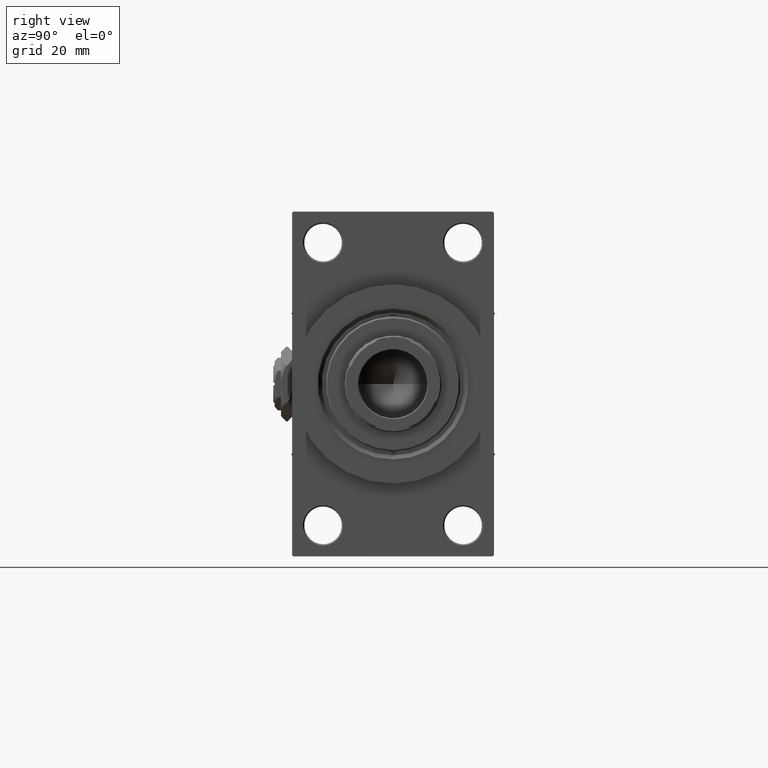
[diagram: clean part render]
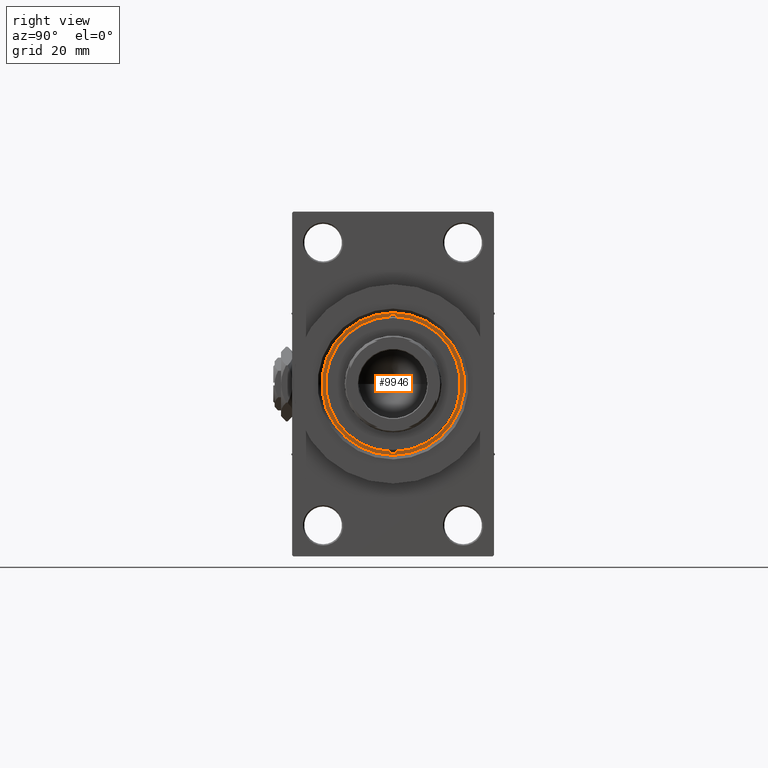
[diagram: same view with one face highlighted and labeled with its STEP entity id]
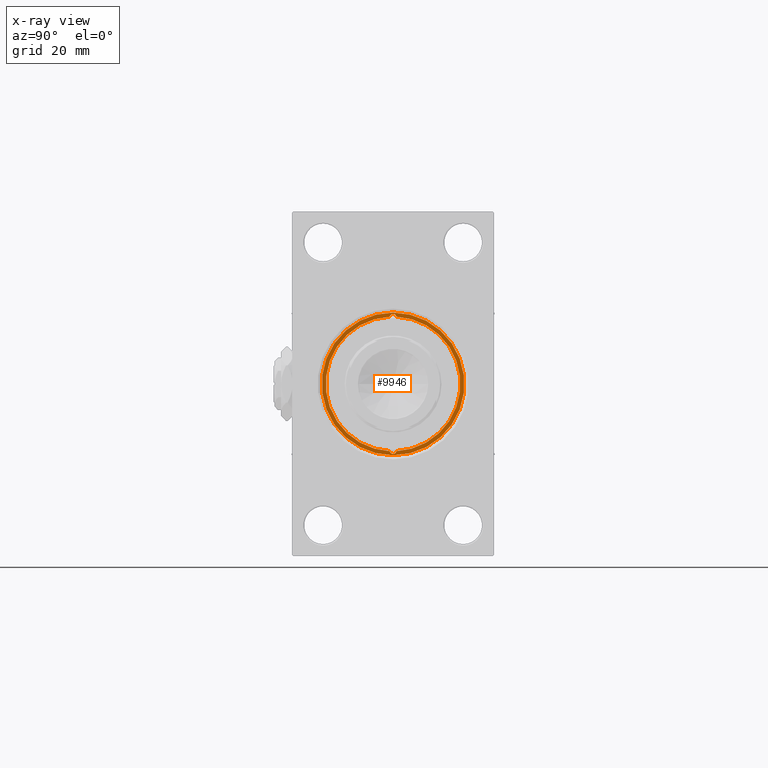
[diagram: x-ray of the same camera — body ghosted, the highlighted face saturated]
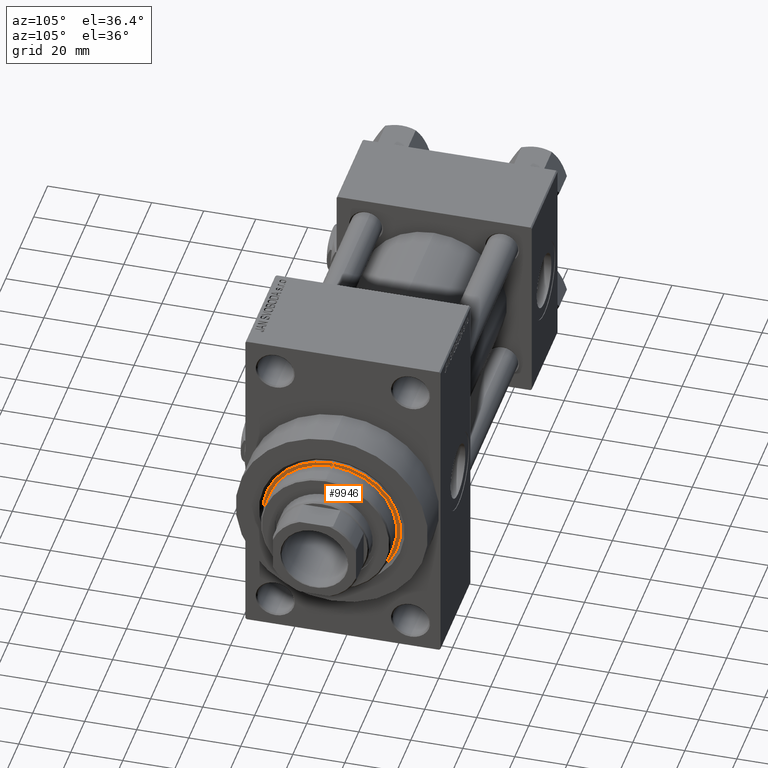
[diagram: same view with one face highlighted and labeled with its STEP entity id]
A machine part, right view. The second image highlights one B-rep face of the part: STEP entity #9946.
The next image is the same camera in x-ray: the body ghosted, the highlighted face saturated — about 0% of this face is hidden behind the body in this view.
A second angle (auxiliary view) of the same face is appended — the face is thin or edge-on in the first view.
In plain terms, the highlighted planar face has unit normal (1, -0, -0).
Its self-contained STEP definition (entity closure, byte-faithful):
#1424 = ORIENTED_EDGE ( 'NONE', *, *, #7255, .F. ) ;
#1521 = CARTESIAN_POINT ( 'NONE',  ( -24.96969696969697239, 1.230541848742237043, 43.25999999999999801 ) ) ;
#2685 = VERTEX_POINT ( 'NONE', #28113 ) ;
#4352 = AXIS2_PLACEMENT_3D ( 'NONE', #36135, #39667, #5321 ) ;
#5321 = DIRECTION ( 'NONE',  ( 1.000000000000000000, 0.000000000000000000, 0.000000000000000000 ) ) ;
#5324 = AXIS2_PLACEMENT_3D ( 'NONE', #34362, #41883, #26840 ) ;
#5377 = CARTESIAN_POINT ( 'NONE',  ( 24.96969696969697239, -1.230541848742237043, 43.25999999999999801 ) ) ;
#6514 = EDGE_CURVE ( 'NONE', #49205, #17184, #37346, .T. ) ;
#7255 = EDGE_CURVE ( 'NONE', #23646, #44979, #42190, .T. ) ;
#7369 = VERTEX_POINT ( 'NONE', #14946 ) ;
#7493 = AXIS2_PLACEMENT_3D ( 'NONE', #14260, #25053, #48113 ) ;
#8199 = ORIENTED_EDGE ( 'NONE', *, *, #44146, .T. ) ;
#9622 = DIRECTION ( 'NONE',  ( 0.000000000000000000, 0.000000000000000000, 1.000000000000000000 ) ) ;
#9946 = ADVANCED_FACE ( 'NONE', ( #38343, #18521 ), #30332, .T. ) ;
#9947 = CARTESIAN_POINT ( 'NONE',  ( -24.75000000000000000, 0.000000000000000000, 43.25999999999999801 ) ) ;
#9954 = CIRCLE ( 'NONE', #4352, 25.00000000000000000 ) ;
#10413 = DIRECTION ( 'NONE',  ( 0.000000000000000000, 0.000000000000000000, 1.000000000000000000 ) ) ;
#10828 = AXIS2_PLACEMENT_3D ( 'NONE', #45308, #11201, #22728 ) ;
#11201 = DIRECTION ( 'NONE',  ( -0.000000000000000000, -0.000000000000000000, 1.000000000000000000 ) ) ;
#12286 = CIRCLE ( 'NONE', #20291, 26.50000000000000355 ) ;
#14260 = CARTESIAN_POINT ( 'NONE',  ( -24.75000000000000000, 0.000000000000000000, 43.25999999999999801 ) ) ;
#14776 = DIRECTION ( 'NONE',  ( 1.000000000000000000, 0.000000000000000000, -0.000000000000000000 ) ) ;
#14920 = CARTESIAN_POINT ( 'NONE',  ( -26.00000000000000000, 1.530808498934188612E-16, 43.25999999999999801 ) ) ;
#14946 = CARTESIAN_POINT ( 'NONE',  ( -26.50000000000000355, 0.000000000000000000, 43.25999999999999801 ) ) ;
#17184 = VERTEX_POINT ( 'NONE', #26933 ) ;
#17696 = DIRECTION ( 'NONE',  ( -0.000000000000000000, -0.000000000000000000, 1.000000000000000000 ) ) ;
#18417 = CARTESIAN_POINT ( 'NONE',  ( 0.000000000000000000, 0.000000000000000000, 43.25999999999999801 ) ) ;
#18521 = FACE_OUTER_BOUND ( 'NONE', #48660, .T. ) ;
#19087 = ORIENTED_EDGE ( 'NONE', *, *, #39470, .T. ) ;
#19317 = CARTESIAN_POINT ( 'NONE',  ( 24.96969696969697239, 1.230541848742237043, 43.25999999999999801 ) ) ;
#20057 = ORIENTED_EDGE ( 'NONE', *, *, #48087, .F. ) ;
#20291 = AXIS2_PLACEMENT_3D ( 'NONE', #18417, #10413, #25705 ) ;
#22728 = DIRECTION ( 'NONE',  ( 1.000000000000000000, 0.000000000000000000, 0.000000000000000000 ) ) ;
#23646 = VERTEX_POINT ( 'NONE', #1521 ) ;
#24927 = EDGE_LOOP ( 'NONE', ( #1424, #39766, #20057, #36523, #48056, #42573 ) ) ;
#25053 = DIRECTION ( 'NONE',  ( -0.000000000000000000, -0.000000000000000000, 1.000000000000000000 ) ) ;
#25705 = DIRECTION ( 'NONE',  ( 1.000000000000000000, 0.000000000000000000, 0.000000000000000000 ) ) ;
#25903 = CIRCLE ( 'NONE', #7493, 1.249999999999997558 ) ;
#26840 = DIRECTION ( 'NONE',  ( 1.000000000000000000, 0.000000000000000000, 0.000000000000000000 ) ) ;
#26933 = CARTESIAN_POINT ( 'NONE',  ( 26.00000000000000000, 0.000000000000000000, 43.25999999999999801 ) ) ;
#28113 = CARTESIAN_POINT ( 'NONE',  ( -24.96969696969697239, -1.230541848742237043, 43.25999999999999801 ) ) ;
#28205 = VERTEX_POINT ( 'NONE', #31978 ) ;
#28351 = CIRCLE ( 'NONE', #37946, 25.00000000000000000 ) ;
#28448 = DIRECTION ( 'NONE',  ( 1.000000000000000000, 0.000000000000000000, 0.000000000000000000 ) ) ;
#28802 = EDGE_CURVE ( 'NONE', #44979, #2685, #25903, .T. ) ;
#29394 = AXIS2_PLACEMENT_3D ( 'NONE', #9947, #17696, #32045 ) ;
#29888 = EDGE_CURVE ( 'NONE', #2685, #49205, #28351, .T. ) ;
#30332 = PLANE ( 'NONE',  #39071 ) ;
#31978 = CARTESIAN_POINT ( 'NONE',  ( 26.50000000000000355, 3.245314017740486554E-15, 43.25999999999999801 ) ) ;
#32045 = DIRECTION ( 'NONE',  ( 1.000000000000000000, 0.000000000000000000, 0.000000000000000000 ) ) ;
#32449 = CIRCLE ( 'NONE', #10828, 1.249999999999997558 ) ;
#33092 = AXIS2_PLACEMENT_3D ( 'NONE', #43981, #9622, #28448 ) ;
#33843 = CARTESIAN_POINT ( 'NONE',  ( 0.000000000000000000, 0.000000000000000000, 43.25999999999999801 ) ) ;
#34362 = CARTESIAN_POINT ( 'NONE',  ( 24.75000000000000000, 0.000000000000000000, 43.25999999999999801 ) ) ;
#36135 = CARTESIAN_POINT ( 'NONE',  ( 0.000000000000000000, 0.000000000000000000, 43.25999999999999801 ) ) ;
#36523 = ORIENTED_EDGE ( 'NONE', *, *, #6514, .F. ) ;
#37346 = CIRCLE ( 'NONE', #5324, 1.249999999999997558 ) ;
#37946 = AXIS2_PLACEMENT_3D ( 'NONE', #47411, #44138, #43900 ) ;
#38343 = FACE_BOUND ( 'NONE', #24927, .T. ) ;
#39071 = AXIS2_PLACEMENT_3D ( 'NONE', #33843, #49134, #14776 ) ;
#39470 = EDGE_CURVE ( 'NONE', #7369, #28205, #39510, .T. ) ;
#39510 = CIRCLE ( 'NONE', #33092, 26.50000000000000355 ) ;
#39667 = DIRECTION ( 'NONE',  ( 0.000000000000000000, 0.000000000000000000, 1.000000000000000000 ) ) ;
#39766 = ORIENTED_EDGE ( 'NONE', *, *, #45592, .F. ) ;
#41883 = DIRECTION ( 'NONE',  ( -0.000000000000000000, -0.000000000000000000, 1.000000000000000000 ) ) ;
#42190 = CIRCLE ( 'NONE', #29394, 1.249999999999997558 ) ;
#42573 = ORIENTED_EDGE ( 'NONE', *, *, #28802, .F. ) ;
#43900 = DIRECTION ( 'NONE',  ( 1.000000000000000000, 0.000000000000000000, 0.000000000000000000 ) ) ;
#43981 = CARTESIAN_POINT ( 'NONE',  ( 0.000000000000000000, 0.000000000000000000, 43.25999999999999801 ) ) ;
#44138 = DIRECTION ( 'NONE',  ( 0.000000000000000000, 0.000000000000000000, 1.000000000000000000 ) ) ;
#44146 = EDGE_CURVE ( 'NONE', #28205, #7369, #12286, .T. ) ;
#44979 = VERTEX_POINT ( 'NONE', #14920 ) ;
#45308 = CARTESIAN_POINT ( 'NONE',  ( 24.75000000000000000, 0.000000000000000000, 43.25999999999999801 ) ) ;
#45592 = EDGE_CURVE ( 'NONE', #47432, #23646, #9954, .T. ) ;
#47411 = CARTESIAN_POINT ( 'NONE',  ( 0.000000000000000000, 0.000000000000000000, 43.25999999999999801 ) ) ;
#47432 = VERTEX_POINT ( 'NONE', #19317 ) ;
#48056 = ORIENTED_EDGE ( 'NONE', *, *, #29888, .F. ) ;
#48087 = EDGE_CURVE ( 'NONE', #17184, #47432, #32449, .T. ) ;
#48113 = DIRECTION ( 'NONE',  ( 1.000000000000000000, 0.000000000000000000, 0.000000000000000000 ) ) ;
#48660 = EDGE_LOOP ( 'NONE', ( #19087, #8199 ) ) ;
#49134 = DIRECTION ( 'NONE',  ( 0.000000000000000000, 0.000000000000000000, 1.000000000000000000 ) ) ;
#49205 = VERTEX_POINT ( 'NONE', #5377 ) ;